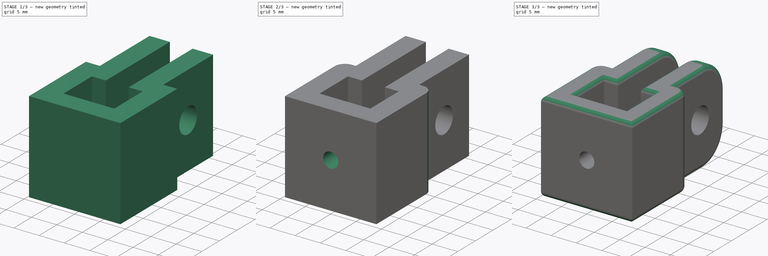
[diagram: build sequence overview — one tinted view per stage of 3, left to right]
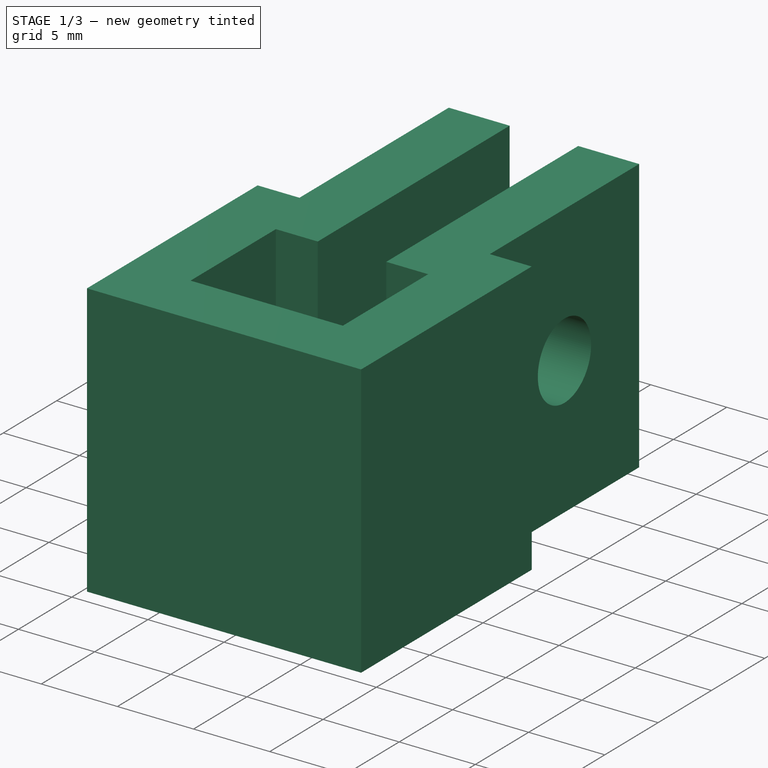
[diagram: stage 1 of 3 — iso view after this stage's code; geometry added in this stage tinted green]
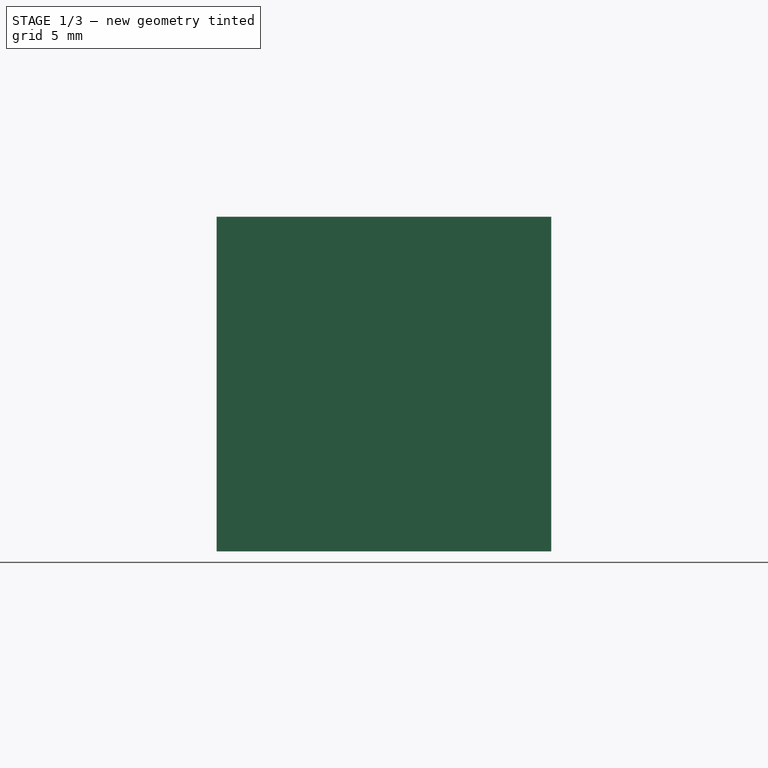
[diagram: stage 1 of 3 — front view after this stage's code; geometry added in this stage tinted green]
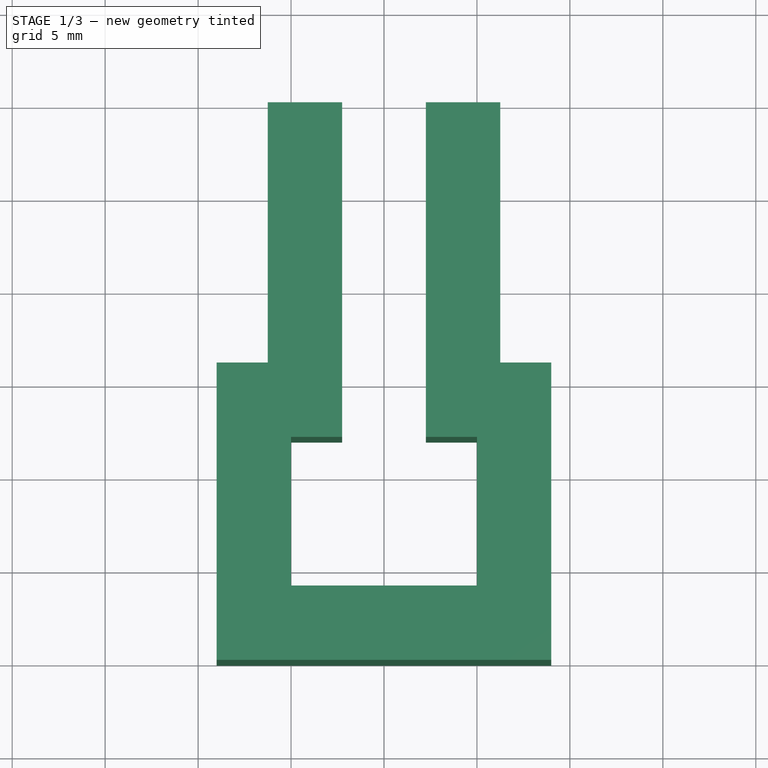
[diagram: stage 1 of 3 — top view after this stage's code; geometry added in this stage tinted green]
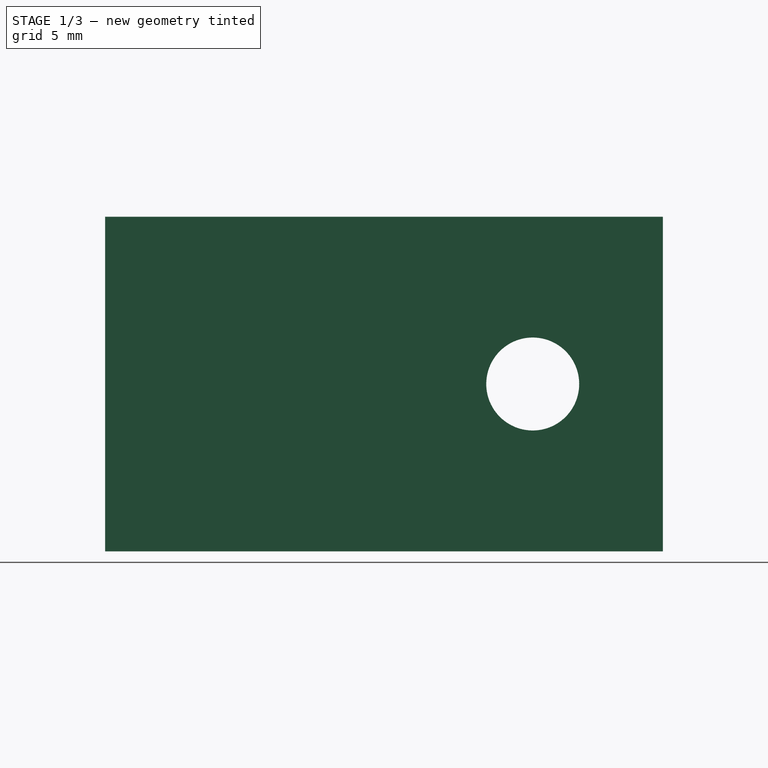
[diagram: stage 1 of 3 — right view after this stage's code; geometry added in this stage tinted green]
FCSTD DOCUMENT  (FreeCAD 2022.111R30764 (Git))
Label: bed speaker mount
License: All rights reserved
LicenseURL: http://en.wikipedia.org/wiki/All_rights_reserved
objects: Sketcher::SketchObject×4, PartDesign::Fillet×3, PartDesign::Pocket×2, PartDesign::Pad×1, PartDesign::Body×1
note: 23 computed .brp shape members not serialized (recipe doc carries the construction recipe); baked Part::Feature solids carry a one-line shape summary decoded from their .brp

FEATURE [Sketcher::SketchObject] Sketch
  FullyConstrained = true
  MapMode = 5
  Support = -> [XY_Plane]
  TreeRank = 11
  sketch-geometry (16):
    g0: LineSegment StartX=-9 StartY=0 StartZ=0 EndX=9 EndY=0 EndZ=0
    g1: LineSegment StartX=6.25 StartY=30 StartZ=0 EndX=2.25 EndY=30 EndZ=0
    g2: LineSegment StartX=2.25 StartY=30 StartZ=0 EndX=2.25 EndY=12 EndZ=0
    g3: LineSegment StartX=-2.25 StartY=12 StartZ=0 EndX=-2.25 EndY=30 EndZ=0
    g4: LineSegment StartX=2.25 StartY=12 StartZ=0 EndX=5 EndY=12 EndZ=0
    g5: LineSegment StartX=5 StartY=12 StartZ=0 EndX=5 EndY=4 EndZ=0
    g6: LineSegment StartX=5 StartY=4 StartZ=0 EndX=-5 EndY=4 EndZ=0
    g7: LineSegment StartX=-5 StartY=4 StartZ=0 EndX=-5 EndY=12 EndZ=0
    g8: LineSegment StartX=-5 StartY=12 StartZ=0 EndX=-2.25 EndY=12 EndZ=0
    g9: LineSegment StartX=-9 StartY=0 StartZ=0 EndX=-9 EndY=16 EndZ=0
    g10: LineSegment StartX=-9 StartY=16 StartZ=0 EndX=-6.25 EndY=16 EndZ=0
    g11: LineSegment StartX=-6.25 StartY=16 StartZ=0 EndX=-6.25 EndY=30 EndZ=0
    g12: LineSegment StartX=9 StartY=0 StartZ=0 EndX=9 EndY=16 EndZ=0
    g13: LineSegment StartX=9 StartY=16 StartZ=0 EndX=6.25 EndY=16 EndZ=0
    g14: LineSegment StartX=6.25 StartY=16 StartZ=0 EndX=6.25 EndY=30 EndZ=0
    g15: LineSegment StartX=-6.25 StartY=30 StartZ=0 EndX=-2.25 EndY=30 EndZ=0
  constraints (44):
    c: PointOnObject(g0,g-1)
    c: Horizontal(g1)
    c: Coincident(g1,g2)
    c: Vertical(g2)
    c: Vertical(g3)
    c: Symmetric(g0,g0,g-1)
    c: Coincident(g2,g4)
    c: Horizontal(g4)
    c: Coincident(g4,g5)
    c: Vertical(g5)
    c: Coincident(g5,g6)
    c: Coincident(g6,g7)
    c: Vertical(g7)
    c: Coincident(g7,g8)
    c: Coincident(g8,g3)
    c: Horizontal(g8)
    c: Symmetric(g6,g5,g-2)
    c: DistanceY(g0,g6) = 4
    c: DistanceY(g3,g3) = 18
    c: Horizontal(g3,g2)
    c: Symmetric(g3,g1,g-2)
    c: DistanceY(g7,g7) = 8
    c: Coincident(g0,g9)
    c: Vertical(g9)
    c: Coincident(g9,g10)
    c: Horizontal(g10)
    c: Coincident(g10,g11)
    c: Vertical(g11)
    c: Coincident(g0,g12)
    c: Vertical(g12)
    c: Coincident(g12,g13)
    c: Horizontal(g13)
    c: Coincident(g13,g14)
    c: Vertical(g14)
    c: Coincident(g14,g1)
    c: DistanceY(g7,g9) = 4
    c: DistanceY(g4,g13) = 4
    c: DistanceX(g6,g6) = 10
    c: Coincident(g11,g15)
    c: Coincident(g15,g3)
    c: Symmetric(g11,g1,g-2)
    c: DistanceX(g15,g15) = 4
    c: DistanceX(g9,g7) = 4
    c: DistanceX(g3,g1) = 4.5
FEATURE [PartDesign::Pad] Pad
  AddSubType = 0
  AlongSketchNormal = false
  CheckUpToFaceLimits = true
  ClaimChildren = false
  Direction = (0,0,1)
  Fit = 0
  FitJoin = 0
  InnerFit = 0
  InnerFitJoin = 0
  InnerTaperAngle = 0
  InnerTaperAngleRev = 0
  Length = 18
  Length2 = 100
  Linearize = true
  NewSolid = false
  Profile = -> Sketch
  Suppress = false
  TreeRank = 12
  Type = 0
  _ProfileBasedVersion = 1
FEATURE [Sketcher::SketchObject] Sketch001
  ExternalGeometry = -> [Pad]
  FullyConstrained = true
  MapMode = 5
  Placement = pos=(0,0,0) rot=(1,0,0;1.5708rad)
  Support = -> [Pad]
  TreeRank = 13
  sketch-geometry (1):
    g0: Circle CenterX=2e-16 CenterY=9 CenterZ=0 NormalX=0 NormalY=0 NormalZ=1 AngleXU=0 Radius=4.46342
  constraints (2):
    c: Symmetric(g-3,g-4,g0)
    c: Diameter(g0) = 8.92685
FEATURE [Sketcher::SketchObject] Sketch002
  ExternalGeometry = -> [Pad]
  FullyConstrained = true
  MapMode = 5
  Placement = pos=(-6.25,0,0) rot=(0.57735,-0.57735,-0.57735;2.0944rad)
  Support = -> [Pad]
  TreeRank = 14
  sketch-geometry (1):
    g0: Circle CenterX=-23 CenterY=9 CenterZ=0 NormalX=0 NormalY=0 NormalZ=1 AngleXU=0 Radius=2.5
  constraints (2):
    c: Symmetric(g-4,g-3,g0)
    c: Diameter(g0) = 5
FEATURE [PartDesign::Pocket] Pocket
  AddSubType = 1
  BaseFeature = -> Pad
  CheckUpToFaceLimits = true
  ClaimChildren = false
  Fit = 0
  FitJoin = 0
  InnerFit = 0
  InnerFitJoin = 0
  InnerTaperAngle = 0
  InnerTaperAngleRev = 0
  Length = 5
  Length2 = 100
  Linearize = true
  NewSolid = false
  Profile = -> Sketch002
  Suppress = false
  TreeRank = 15
  Type = 1
  _ProfileBasedVersion = 1
  _Version = 1
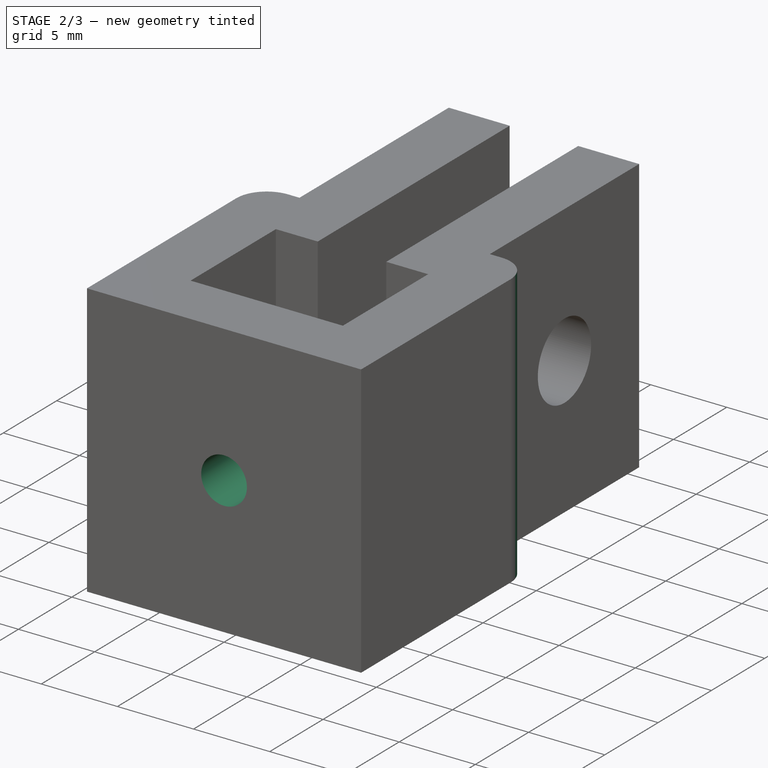
[diagram: stage 2 of 3 — iso view after this stage's code; geometry added in this stage tinted green]
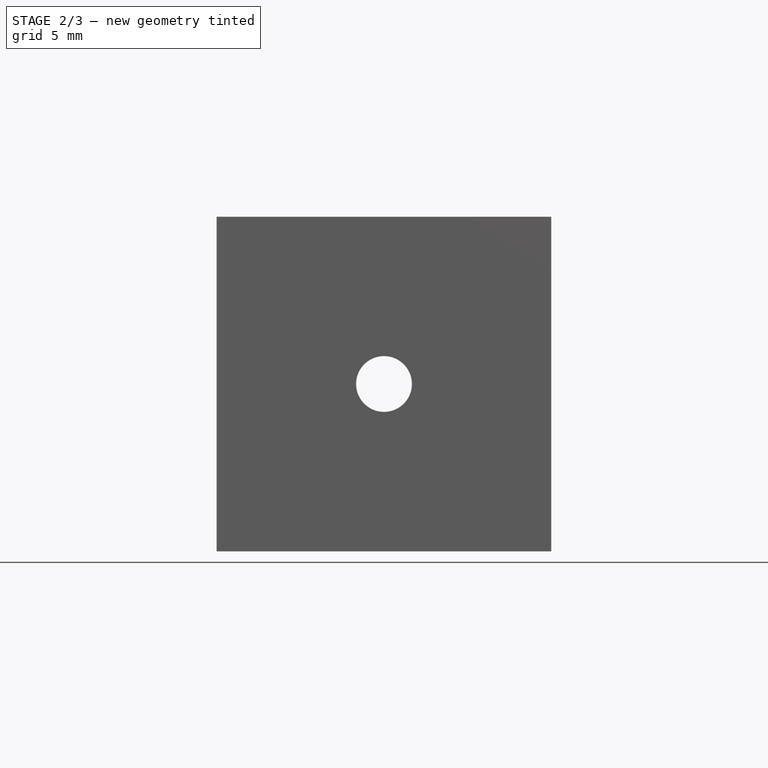
[diagram: stage 2 of 3 — front view after this stage's code; geometry added in this stage tinted green]
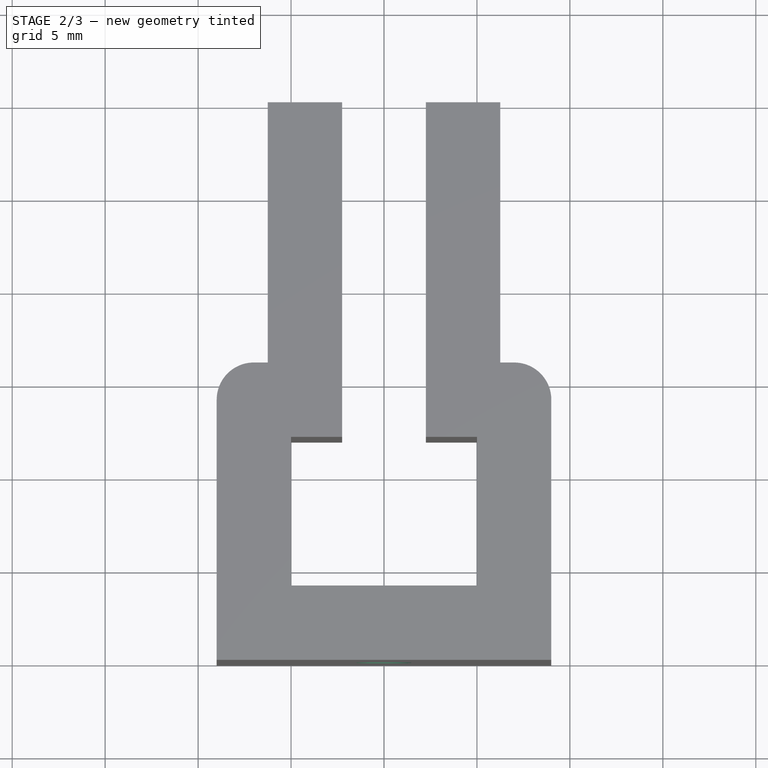
[diagram: stage 2 of 3 — top view after this stage's code; geometry added in this stage tinted green]
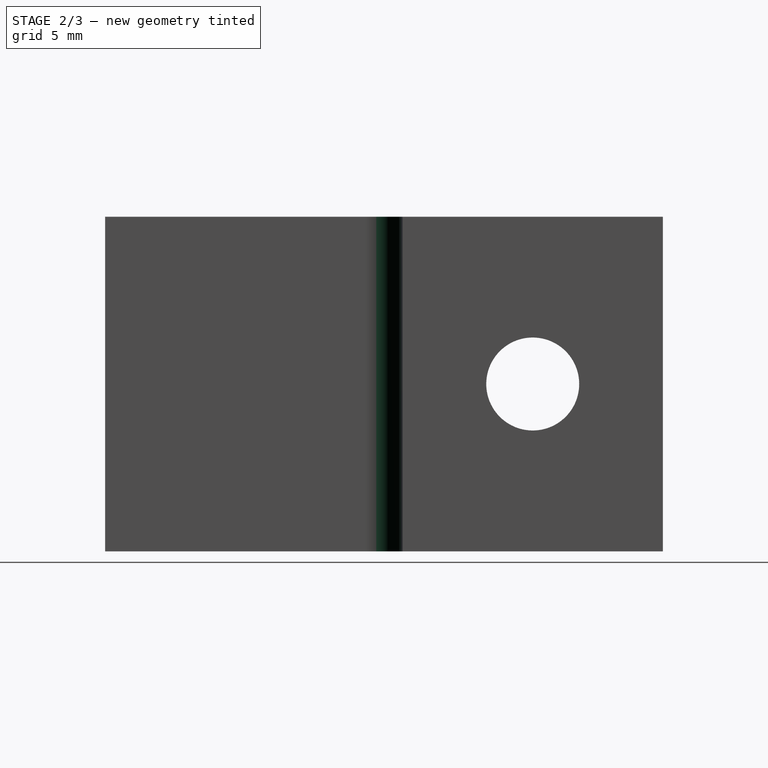
[diagram: stage 2 of 3 — right view after this stage's code; geometry added in this stage tinted green]
FEATURE [Sketcher::SketchObject] Sketch003
  ExternalGeometry = -> [Pocket]
  FullyConstrained = true
  MapMode = 5
  Placement = pos=(0,0,0) rot=(1,0,0;1.5708rad)
  Support = -> [Pocket]
  TreeRank = 16
  sketch-geometry (1):
    g0: Circle CenterX=0 CenterY=9 CenterZ=0 NormalX=0 NormalY=0 NormalZ=1 AngleXU=0 Radius=1.5
  constraints (2):
    c: Symmetric(g-3,g-4,g0)
    c: Diameter(g0) = 3
FEATURE [PartDesign::Pocket] Pocket001
  AddSubType = 1
  BaseFeature = -> Pocket
  CheckUpToFaceLimits = true
  ClaimChildren = false
  Fit = 0
  FitJoin = 0
  InnerFit = 0
  InnerFitJoin = 0
  InnerTaperAngle = 0
  InnerTaperAngleRev = 0
  Length = 5
  Length2 = 100
  Linearize = true
  NewSolid = false
  Profile = -> Sketch003
  Suppress = false
  TreeRank = 17
  Type = 1
  _ProfileBasedVersion = 1
  _Version = 1
FEATURE [PartDesign::Fillet] Fillet
  AddSubType = 0
  Base = -> Pocket001 [Edge2,Edge38]
  BaseFeature = -> Pocket001
  NewSolid = false
  Radius = 2
  SupportTransform = false
  Suppress = false
  TreeRank = 18
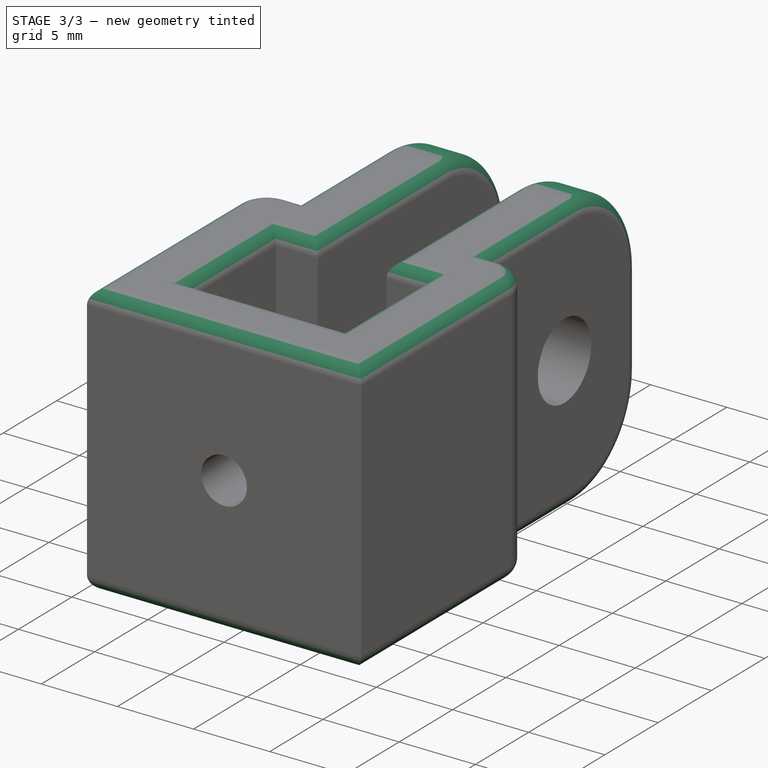
[diagram: stage 3 of 3 — iso view after this stage's code; geometry added in this stage tinted green]
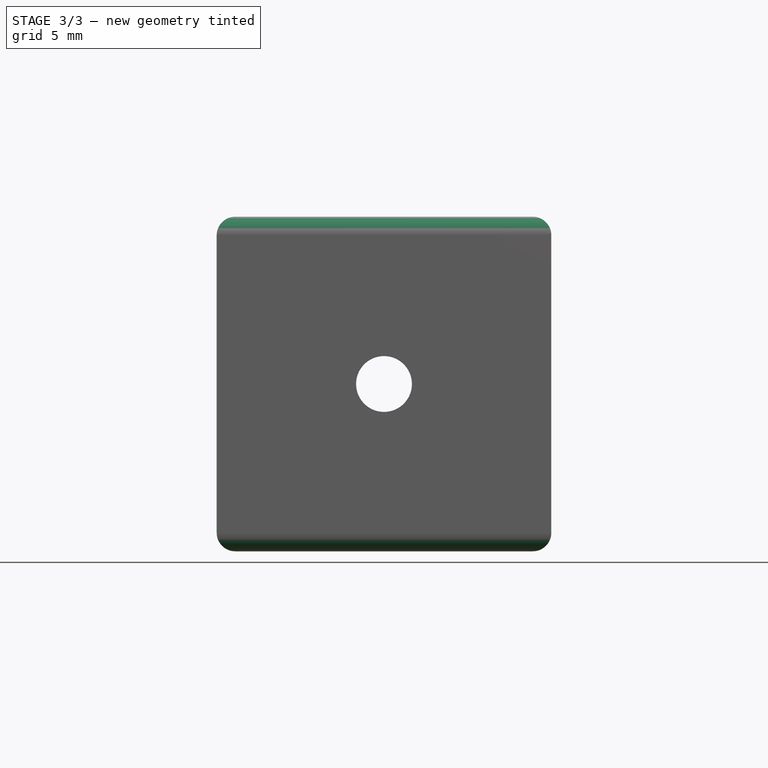
[diagram: stage 3 of 3 — front view after this stage's code; geometry added in this stage tinted green]
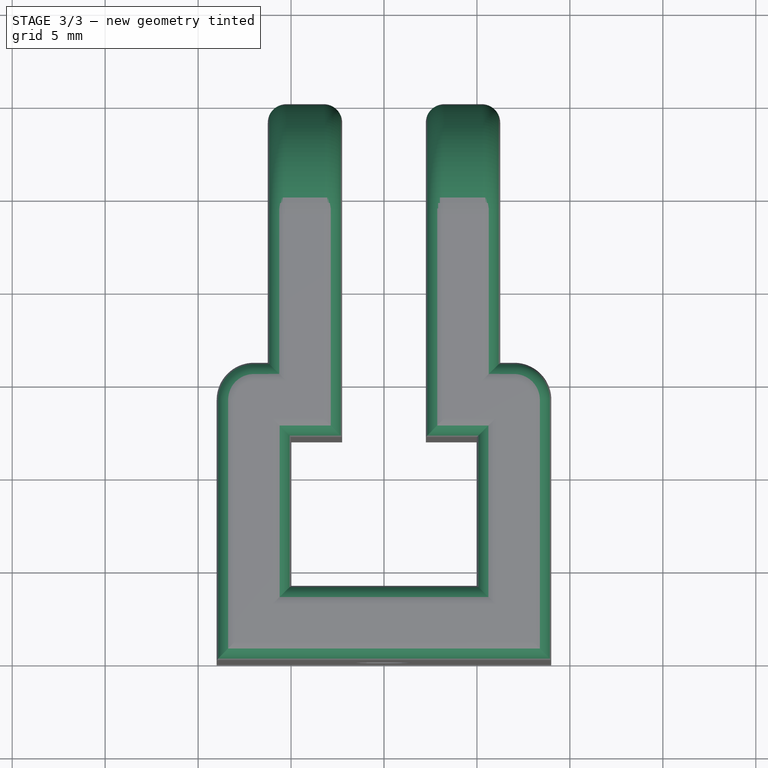
[diagram: stage 3 of 3 — top view after this stage's code; geometry added in this stage tinted green]
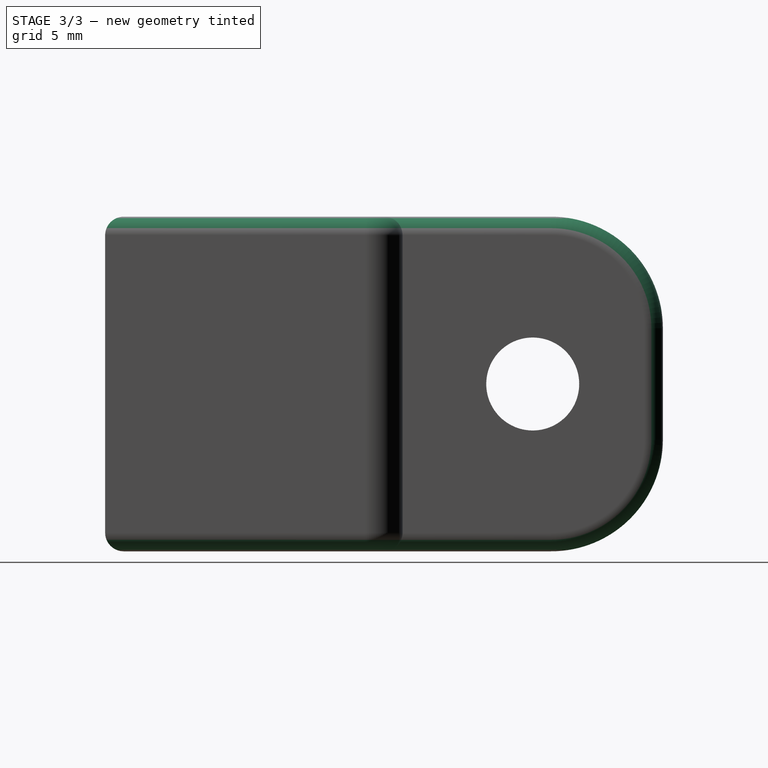
[diagram: stage 3 of 3 — right view after this stage's code; geometry added in this stage tinted green]
FEATURE [PartDesign::Fillet] Fillet001
  AddSubType = 0
  Base = -> Fillet [Edge16,Edge11,Edge36,Edge31]
  BaseFeature = -> Fillet
  NewSolid = false
  Radius = 6
  SupportTransform = false
  Suppress = false
  TreeRank = 19
FEATURE [PartDesign::Fillet] Fillet002
  AddSubType = 0
  Base = -> Fillet001 [Face21,Face1]
  BaseFeature = -> Fillet001
  NewSolid = false
  Radius = 1
  SupportTransform = false
  Suppress = false
  TreeRank = 20
FEATURE [PartDesign::Body] Body
  AutoGroupSolids = false
  ExportMode = 0
  Group = -> [Sketch,Pad,Sketch001,Sketch002,Pocket,Sketch003,Pocket001,Fillet,Fillet001,Fillet002]
  Origin = -> Origin
  Tip = -> Fillet002
  TreeRank = 10
  _ExportChildren = -> [Pad,Sketch001,Pocket,Pocket001,Fillet,Fillet001,Fillet002]
  _GroupVersion = 1
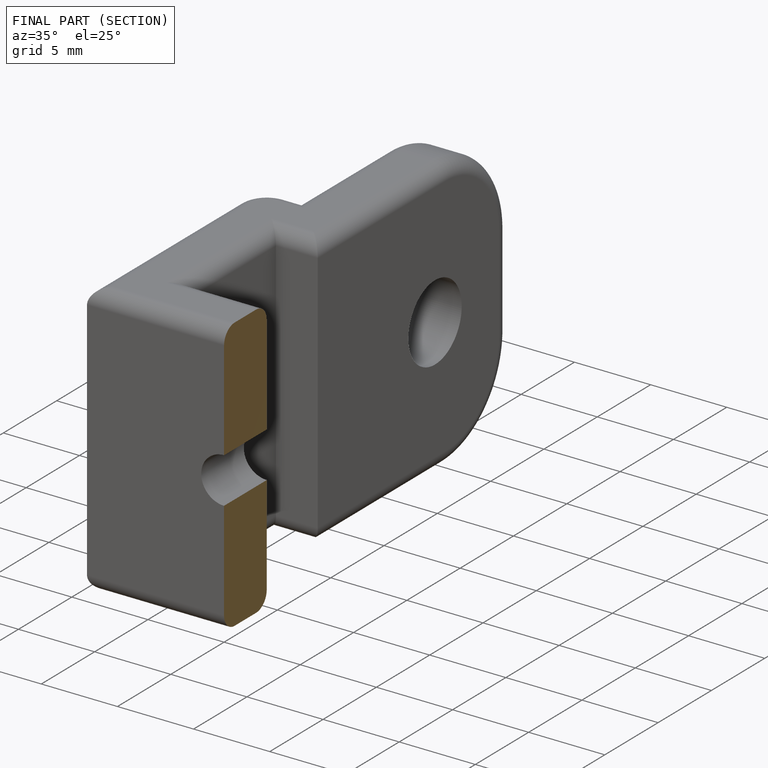
[diagram: finished part — half-section view (interior)]
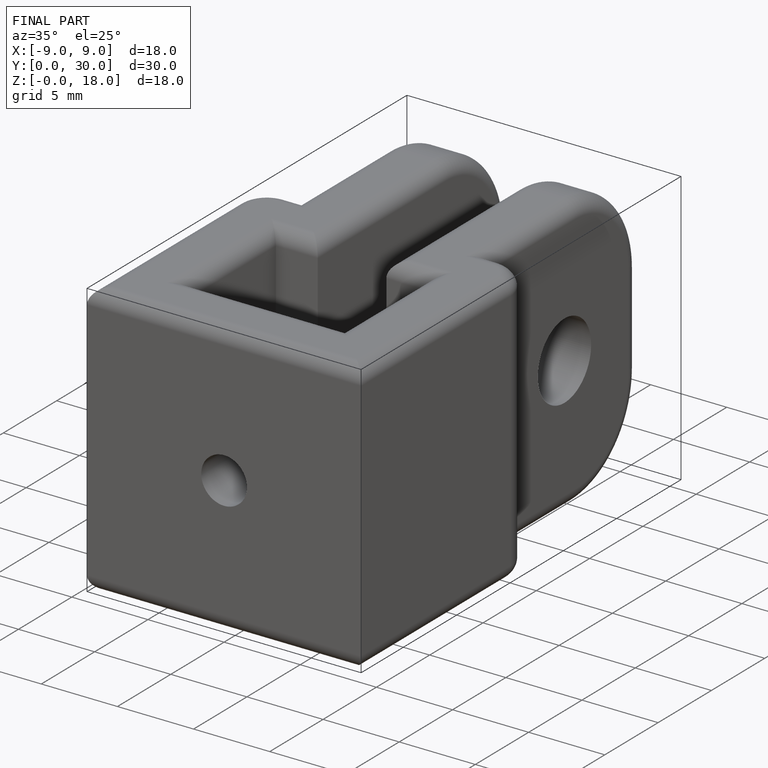
[diagram: finished part — iso view with bounding-box wireframe]
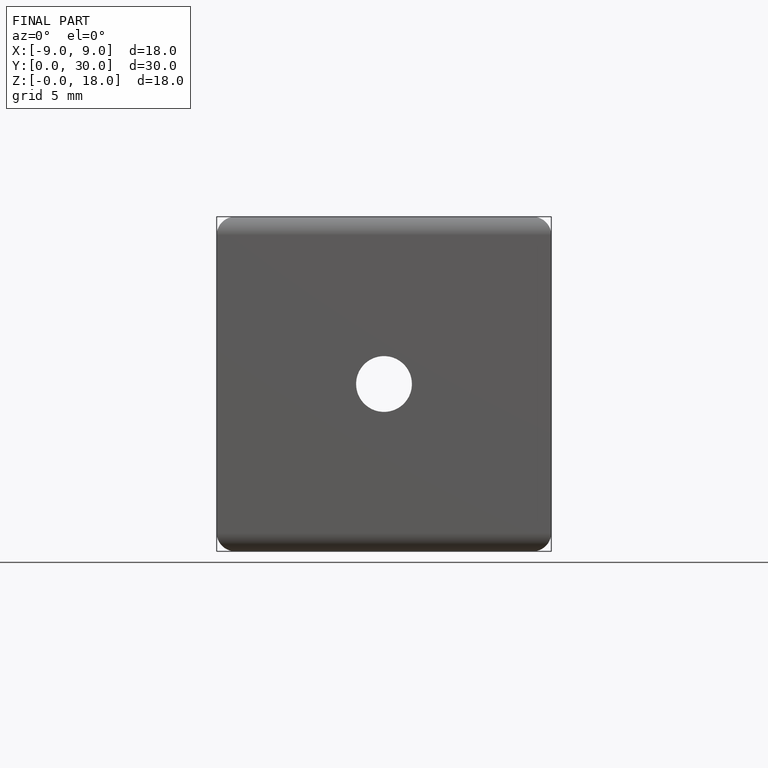
[diagram: finished part — front view with bounding-box wireframe]
